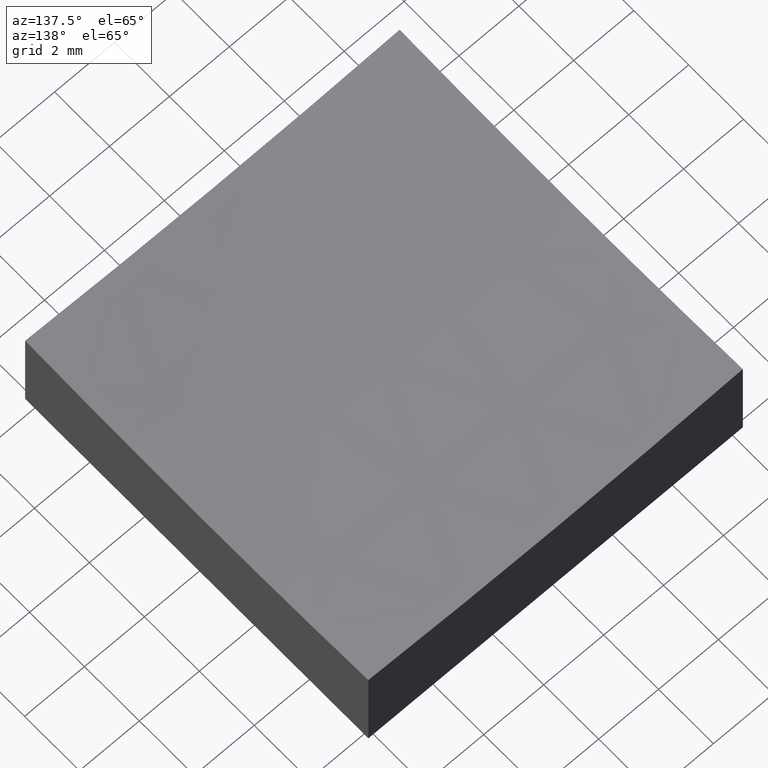
[diagram: clean part render]
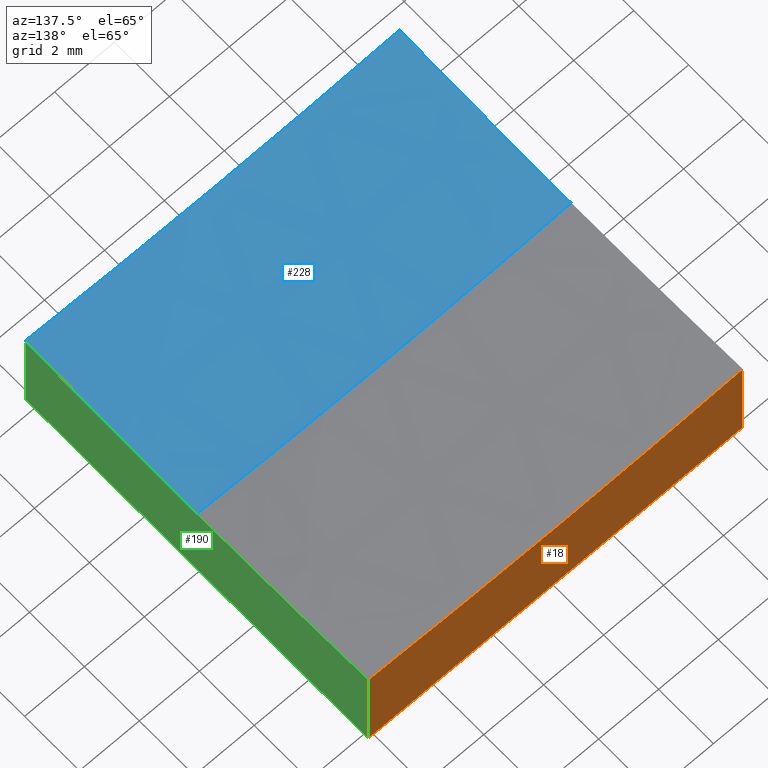
[diagram: same view with three faces highlighted in distinct colors, each labeled with its STEP entity id]
A machine part, auxiliary view with three faces highlighted in distinct colors.
Their STEP definitions:

[orange] entity #18 — the highlighted planar face has unit normal (0, 1, 0).
#6 = EDGE_LOOP ( 'NONE', ( #231, #62, #209, #244 ) ) ;
#9 = DIRECTION ( 'NONE',  ( 0.0000000000000000000, 1.000000000000000000, 0.0000000000000000000 ) ) ;
#10 = VECTOR ( 'NONE', #136, 1000.000000000000000 ) ;
#18 = ADVANCED_FACE ( 'NONE', ( #118 ), #195, .T. ) ;
#20 = VERTEX_POINT ( 'NONE', #137 ) ;
#23 = CARTESIAN_POINT ( 'NONE',  ( 6.250000000000000000, 6.250000000000000888, 3.391390934317326078 ) ) ;
#27 = EDGE_CURVE ( 'NONE', #196, #20, #41, .T. ) ;
#28 = CARTESIAN_POINT ( 'NONE',  ( -6.250000000000000000, 6.250000000000000888, 0.0000000000000000000 ) ) ;
#41 = LINE ( 'NONE', #194, #10 ) ;
#47 = LINE ( 'NONE', #28, #146 ) ;
#61 = CARTESIAN_POINT ( 'NONE',  ( -6.250000000000000000, 6.250000000000000888, 0.0000000000000000000 ) ) ;
#62 = ORIENTED_EDGE ( 'NONE', *, *, #27, .T. ) ;
#64 = LINE ( 'NONE', #189, #156 ) ;
#71 = AXIS2_PLACEMENT_3D ( 'NONE', #230, #95, #252 ) ;
#73 = EDGE_CURVE ( 'NONE', #196, #99, #205, .T. ) ;
#86 = DIRECTION ( 'NONE',  ( -0.0000000000000000000, -0.0000000000000000000, -1.000000000000000000 ) ) ;
#95 = DIRECTION ( 'NONE',  ( 0.0000000000000000000, 1.000000000000000000, 0.0000000000000000000 ) ) ;
#99 = VERTEX_POINT ( 'NONE', #167 ) ;
#103 = AXIS2_PLACEMENT_3D ( 'NONE', #185, #9, #166 ) ;
#118 = FACE_OUTER_BOUND ( 'NONE', #6, .T. ) ;
#136 = DIRECTION ( 'NONE',  ( -0.0000000000000000000, -0.0000000000000000000, -1.000000000000000000 ) ) ;
#137 = CARTESIAN_POINT ( 'NONE',  ( 6.250000000000000000, 6.250000000000000888, 0.0000000000000000000 ) ) ;
#146 = VECTOR ( 'NONE', #170, 1000.000000000000000 ) ;
#156 = VECTOR ( 'NONE', #86, 1000.000000000000000 ) ;
#166 = DIRECTION ( 'NONE',  ( 0.0000000000000000000, 0.0000000000000000000, 1.000000000000000000 ) ) ;
#167 = CARTESIAN_POINT ( 'NONE',  ( -6.250000000000000000, 6.250000000000000888, 3.391390934317326078 ) ) ;
#168 = EDGE_CURVE ( 'NONE', #99, #229, #64, .T. ) ;
#170 = DIRECTION ( 'NONE',  ( 1.000000000000000000, 0.0000000000000000000, 0.0000000000000000000 ) ) ;
#178 = EDGE_CURVE ( 'NONE', #229, #20, #47, .T. ) ;
#185 = CARTESIAN_POINT ( 'NONE',  ( 1.261386203121774235E-14, 6.250000000000000888, 103.0000000000000142 ) ) ;
#189 = CARTESIAN_POINT ( 'NONE',  ( -6.250000000000000000, 6.250000000000000888, 10.00000000000000000 ) ) ;
#194 = CARTESIAN_POINT ( 'NONE',  ( 6.250000000000000000, 6.250000000000000888, 10.00000000000000000 ) ) ;
#195 = PLANE ( 'NONE',  #71 ) ;
#196 = VERTEX_POINT ( 'NONE', #23 ) ;
#205 = CIRCLE ( 'NONE', #103, 99.80449639169572151 ) ;
#209 = ORIENTED_EDGE ( 'NONE', *, *, #178, .F. ) ;
#229 = VERTEX_POINT ( 'NONE', #61 ) ;
#230 = CARTESIAN_POINT ( 'NONE',  ( -6.250000000000000000, 6.250000000000000888, 10.00000000000000000 ) ) ;
#231 = ORIENTED_EDGE ( 'NONE', *, *, #73, .F. ) ;
#244 = ORIENTED_EDGE ( 'NONE', *, *, #168, .F. ) ;
#252 = DIRECTION ( 'NONE',  ( 0.0000000000000000000, -0.0000000000000000000, 1.000000000000000000 ) ) ;

[blue] entity #228 — the highlighted spherical surface has radius 100 mm.
#1 = DIRECTION ( 'NONE',  ( 0.0000000000000000000, -1.000000000000000000, -0.0000000000000000000 ) ) ;
#17 = ORIENTED_EDGE ( 'NONE', *, *, #163, .T. ) ;
#21 = ORIENTED_EDGE ( 'NONE', *, *, #101, .F. ) ;
#24 = CARTESIAN_POINT ( 'NONE',  ( 6.250000000000000000, -6.250000000000000888, 3.391390934317326078 ) ) ;
#30 = DIRECTION ( 'NONE',  ( 1.224646799147353207E-16, 1.000000000000000000, -1.494917516854725104E-32 ) ) ;
#35 = EDGE_CURVE ( 'NONE', #98, #159, #153, .T. ) ;
#55 = ORIENTED_EDGE ( 'NONE', *, *, #35, .F. ) ;
#56 = ORIENTED_EDGE ( 'NONE', *, *, #249, .F. ) ;
#57 = DIRECTION ( 'NONE',  ( 0.0000000000000000000, 0.0000000000000000000, -1.000000000000000000 ) ) ;
#59 = VERTEX_POINT ( 'NONE', #24 ) ;
#66 = CARTESIAN_POINT ( 'NONE',  ( 6.530168136435014218E-15, 0.0000000000000000000, 3.000000000000002665 ) ) ;
#68 = CARTESIAN_POINT ( 'NONE',  ( 6.250000000000000000, 0.0000000000000000000, 3.195503608304305132 ) ) ;
#69 = CARTESIAN_POINT ( 'NONE',  ( -6.250000000000000000, -6.250000000000000888, 3.391390934317326078 ) ) ;
#70 = CARTESIAN_POINT ( 'NONE',  ( -6.250000000000000000, 0.0000000000000000000, 103.0000000000000142 ) ) ;
#74 = AXIS2_PLACEMENT_3D ( 'NONE', #164, #238, #241 ) ;
#85 = DIRECTION ( 'NONE',  ( 0.0000000000000000000, 1.000000000000000000, 0.0000000000000000000 ) ) ;
#91 = DIRECTION ( 'NONE',  ( -1.000000000000000000, 1.224646799147353207E-16, 0.0000000000000000000 ) ) ;
#92 = AXIS2_PLACEMENT_3D ( 'NONE', #139, #181, #184 ) ;
#96 = EDGE_CURVE ( 'NONE', #59, #159, #223, .T. ) ;
#98 = VERTEX_POINT ( 'NONE', #66 ) ;
#101 = EDGE_CURVE ( 'NONE', #226, #173, #210, .T. ) ;
#102 = ORIENTED_EDGE ( 'NONE', *, *, #96, .T. ) ;
#111 = EDGE_LOOP ( 'NONE', ( #55, #17, #21, #56, #102 ) ) ;
#119 = SPHERICAL_SURFACE ( 'NONE', #130, 100.0000000000000000 ) ;
#120 = CARTESIAN_POINT ( 'NONE',  ( 1.261386203121774235E-14, 0.0000000000000000000, 103.0000000000000142 ) ) ;
#121 = AXIS2_PLACEMENT_3D ( 'NONE', #120, #30, #91 ) ;
#130 = AXIS2_PLACEMENT_3D ( 'NONE', #200, #85, #232 ) ;
#139 = CARTESIAN_POINT ( 'NONE',  ( 1.261386203121774235E-14, -6.250000000000000888, 103.0000000000000142 ) ) ;
#144 = FACE_OUTER_BOUND ( 'NONE', #111, .T. ) ;
#147 = CARTESIAN_POINT ( 'NONE',  ( -6.250000000000000000, 7.654042494670957606E-16, 3.195503608304305132 ) ) ;
#149 = DIRECTION ( 'NONE',  ( 1.000000000000000000, 0.0000000000000000000, -0.0000000000000000000 ) ) ;
#153 = CIRCLE ( 'NONE', #175, 100.0000000000000000 ) ;
#159 = VERTEX_POINT ( 'NONE', #68 ) ;
#163 = EDGE_CURVE ( 'NONE', #98, #173, #227, .T. ) ;
#164 = CARTESIAN_POINT ( 'NONE',  ( 6.250000000000000000, 0.0000000000000000000, 103.0000000000000142 ) ) ;
#172 = CIRCLE ( 'NONE', #92, 99.80449639169572151 ) ;
#173 = VERTEX_POINT ( 'NONE', #147 ) ;
#174 = CARTESIAN_POINT ( 'NONE',  ( 1.261386203121774235E-14, 0.0000000000000000000, 103.0000000000000142 ) ) ;
#175 = AXIS2_PLACEMENT_3D ( 'NONE', #174, #1, #57 ) ;
#181 = DIRECTION ( 'NONE',  ( 0.0000000000000000000, 1.000000000000000000, 0.0000000000000000000 ) ) ;
#184 = DIRECTION ( 'NONE',  ( 0.0000000000000000000, 0.0000000000000000000, 1.000000000000000000 ) ) ;
#200 = CARTESIAN_POINT ( 'NONE',  ( 1.261386203121774235E-14, 0.0000000000000000000, 103.0000000000000142 ) ) ;
#210 = CIRCLE ( 'NONE', #250, 99.80449639169570730 ) ;
#217 = DIRECTION ( 'NONE',  ( 0.0000000000000000000, 0.0000000000000000000, -1.000000000000000000 ) ) ;
#223 = CIRCLE ( 'NONE', #74, 99.80449639169570730 ) ;
#226 = VERTEX_POINT ( 'NONE', #69 ) ;
#227 = CIRCLE ( 'NONE', #121, 100.0000000000000000 ) ;
#228 = ADVANCED_FACE ( 'NONE', ( #144 ), #119, .F. ) ;
#232 = DIRECTION ( 'NONE',  ( 1.000000000000000000, 0.0000000000000000000, -1.387778780781445676E-16 ) ) ;
#238 = DIRECTION ( 'NONE',  ( 1.000000000000000000, 0.0000000000000000000, -0.0000000000000000000 ) ) ;
#241 = DIRECTION ( 'NONE',  ( 0.0000000000000000000, 0.0000000000000000000, -1.000000000000000000 ) ) ;
#249 = EDGE_CURVE ( 'NONE', #59, #226, #172, .T. ) ;
#250 = AXIS2_PLACEMENT_3D ( 'NONE', #70, #149, #217 ) ;

[green] entity #190 — the highlighted planar face has unit normal (1, 0, -0).
#8 = CARTESIAN_POINT ( 'NONE',  ( 6.250000000000000000, 6.250000000000000888, 0.0000000000000000000 ) ) ;
#10 = VECTOR ( 'NONE', #136, 1000.000000000000000 ) ;
#13 = ORIENTED_EDGE ( 'NONE', *, *, #39, .F. ) ;
#20 = VERTEX_POINT ( 'NONE', #137 ) ;
#23 = CARTESIAN_POINT ( 'NONE',  ( 6.250000000000000000, 6.250000000000000888, 3.391390934317326078 ) ) ;
#24 = CARTESIAN_POINT ( 'NONE',  ( 6.250000000000000000, -6.250000000000000888, 3.391390934317326078 ) ) ;
#27 = EDGE_CURVE ( 'NONE', #196, #20, #41, .T. ) ;
#37 = VERTEX_POINT ( 'NONE', #38 ) ;
#38 = CARTESIAN_POINT ( 'NONE',  ( 6.250000000000000000, -6.250000000000000888, 0.0000000000000000000 ) ) ;
#39 = EDGE_CURVE ( 'NONE', #159, #196, #150, .T. ) ;
#41 = LINE ( 'NONE', #194, #10 ) ;
#45 = LINE ( 'NONE', #8, #246 ) ;
#52 = DIRECTION ( 'NONE',  ( 1.000000000000000000, 0.0000000000000000000, -0.0000000000000000000 ) ) ;
#59 = VERTEX_POINT ( 'NONE', #24 ) ;
#68 = CARTESIAN_POINT ( 'NONE',  ( 6.250000000000000000, 0.0000000000000000000, 3.195503608304305132 ) ) ;
#72 = CARTESIAN_POINT ( 'NONE',  ( 6.250000000000000000, 6.250000000000000888, 10.00000000000000000 ) ) ;
#74 = AXIS2_PLACEMENT_3D ( 'NONE', #164, #238, #241 ) ;
#78 = EDGE_CURVE ( 'NONE', #20, #37, #45, .T. ) ;
#94 = VECTOR ( 'NONE', #201, 1000.000000000000000 ) ;
#96 = EDGE_CURVE ( 'NONE', #59, #159, #223, .T. ) ;
#97 = AXIS2_PLACEMENT_3D ( 'NONE', #72, #52, #247 ) ;
#105 = DIRECTION ( 'NONE',  ( 0.0000000000000000000, -1.000000000000000000, 0.0000000000000000000 ) ) ;
#115 = CARTESIAN_POINT ( 'NONE',  ( 6.250000000000000000, 0.0000000000000000000, 103.0000000000000142 ) ) ;
#124 = CARTESIAN_POINT ( 'NONE',  ( 6.250000000000000000, -6.250000000000000888, 10.00000000000000000 ) ) ;
#131 = EDGE_CURVE ( 'NONE', #59, #37, #215, .T. ) ;
#136 = DIRECTION ( 'NONE',  ( -0.0000000000000000000, -0.0000000000000000000, -1.000000000000000000 ) ) ;
#137 = CARTESIAN_POINT ( 'NONE',  ( 6.250000000000000000, 6.250000000000000888, 0.0000000000000000000 ) ) ;
#138 = ORIENTED_EDGE ( 'NONE', *, *, #131, .T. ) ;
#150 = CIRCLE ( 'NONE', #206, 99.80449639169570730 ) ;
#152 = PLANE ( 'NONE',  #97 ) ;
#158 = ORIENTED_EDGE ( 'NONE', *, *, #27, .F. ) ;
#159 = VERTEX_POINT ( 'NONE', #68 ) ;
#161 = DIRECTION ( 'NONE',  ( 0.0000000000000000000, 0.0000000000000000000, -1.000000000000000000 ) ) ;
#164 = CARTESIAN_POINT ( 'NONE',  ( 6.250000000000000000, 0.0000000000000000000, 103.0000000000000142 ) ) ;
#180 = DIRECTION ( 'NONE',  ( 1.000000000000000000, 0.0000000000000000000, -0.0000000000000000000 ) ) ;
#190 = ADVANCED_FACE ( 'NONE', ( #221 ), #152, .T. ) ;
#194 = CARTESIAN_POINT ( 'NONE',  ( 6.250000000000000000, 6.250000000000000888, 10.00000000000000000 ) ) ;
#196 = VERTEX_POINT ( 'NONE', #23 ) ;
#201 = DIRECTION ( 'NONE',  ( -0.0000000000000000000, -0.0000000000000000000, -1.000000000000000000 ) ) ;
#206 = AXIS2_PLACEMENT_3D ( 'NONE', #115, #180, #161 ) ;
#207 = ORIENTED_EDGE ( 'NONE', *, *, #78, .F. ) ;
#212 = EDGE_LOOP ( 'NONE', ( #233, #138, #207, #158, #13 ) ) ;
#215 = LINE ( 'NONE', #124, #94 ) ;
#221 = FACE_OUTER_BOUND ( 'NONE', #212, .T. ) ;
#223 = CIRCLE ( 'NONE', #74, 99.80449639169570730 ) ;
#233 = ORIENTED_EDGE ( 'NONE', *, *, #96, .F. ) ;
#238 = DIRECTION ( 'NONE',  ( 1.000000000000000000, 0.0000000000000000000, -0.0000000000000000000 ) ) ;
#241 = DIRECTION ( 'NONE',  ( 0.0000000000000000000, 0.0000000000000000000, -1.000000000000000000 ) ) ;
#246 = VECTOR ( 'NONE', #105, 1000.000000000000000 ) ;
#247 = DIRECTION ( 'NONE',  ( -0.0000000000000000000, 0.0000000000000000000, -1.000000000000000000 ) ) ;